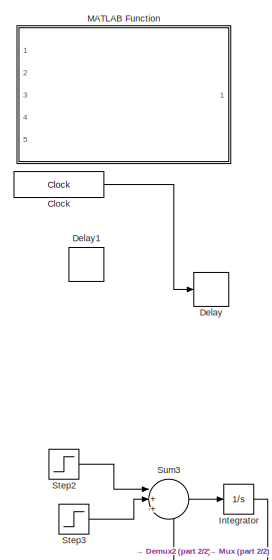
[diagram: root canvas - part 1/2, middle left region]
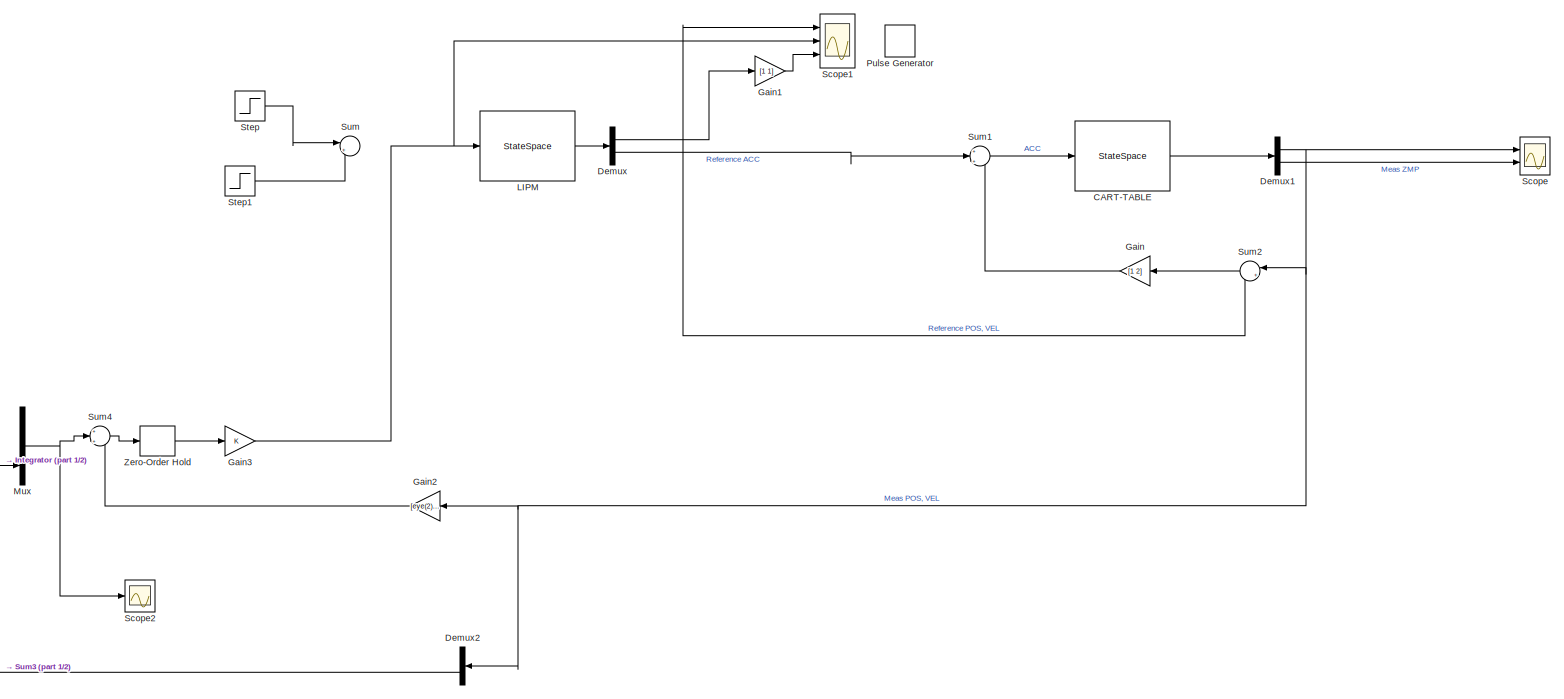
[diagram: root canvas - part 2/2, most of the canvas]
MODEL slx_6d837550c798
KIND model
CONFIG AbsTol = auto
CONFIG EnableMultiTasking = off
CONFIG FixedStep = 1e-4
CONFIG MaxStep = 1e-3
CONFIG MinStep = auto
CONFIG RelTol = 1e-6
CONFIG SampleTimeConstraint = Unconstrained
CONFIG Solver = VariableStepAuto
CONFIG SolverName = VariableStepAuto
CONFIG StartTime = 0.0
CONFIG StopTime = 30
BLOCK [StateSpace] CART-TABLE
  A = [0 1; 0 0]
  B = [0; 1]
  C = [eye(2); [1 0]]
  D = [0; 0; -1]
  Ports = [1, 1]
  X0 = [0 0]
BLOCK [Clock] Clock
  Commented = on
  DisplayTime = on
BLOCK [Delay] Delay
  Commented = on
  DelayLength = 1
  InitialCondition = 0
  InputPortMap = u0
  Ports = [1, 1]
BLOCK [Delay] Delay1
  Commented = on
  DelayLength = 1
  InitialCondition = 0
  InputPortMap = u0
  Ports = [1, 1]
BLOCK [Demux] Demux
  DisplayOption = bar
  Outputs = [2 1]
  Ports = [1, 2]
BLOCK [Demux] Demux1
  DisplayOption = bar
  Outputs = [2 1]
  Ports = [1, 2]
BLOCK [Demux] Demux2
  DisplayOption = bar
  Outputs = [1 1]
  Ports = [1, 2]
BLOCK [Gain] Gain
  Gain = [1 2]
  Multiplication = Matrix(K*u)
  OutDataTypeStr = Inherit: Inherit via internal rule
  ParamDataTypeStr = Inherit: Inherit via internal rule
  SaturateOnIntegerOverflow = off
BLOCK [Gain] Gain1
  Gain = [1 1]
  Multiplication = Matrix(K*u)
  OutDataTypeStr = Inherit: Inherit via internal rule
  ParamDataTypeStr = Inherit: Inherit via internal rule
  SaturateOnIntegerOverflow = off
BLOCK [Gain] Gain2
  Gain = [eye(2); [0 0]]
  Multiplication = Matrix(K*u)
  OutDataTypeStr = Inherit: Inherit via internal rule
  ParamDataTypeStr = Inherit: Inherit via internal rule
  SaturateOnIntegerOverflow = off
BLOCK [Gain] Gain3
  Gain = K
  Multiplication = Matrix(K*u)
  OutDataTypeStr = Inherit: Inherit via internal rule
  ParamDataTypeStr = Inherit: Inherit via internal rule
  SaturateOnIntegerOverflow = off
BLOCK [Integrator] Integrator
  Ports = [1, 1]
BLOCK [StateSpace] LIPM
  A = [0 1; 1 0]
  B = [0; -1]
  C = [eye(2); [1 0]]
  D = [0; 0; -1]
  Ports = [1, 1]
  X0 = [0 0]
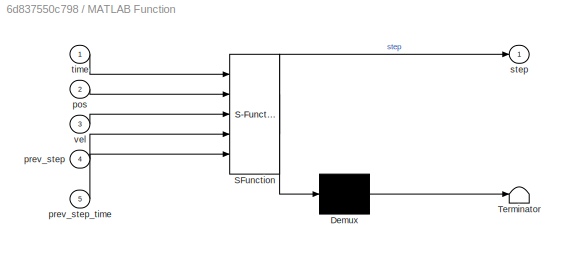
BLOCK [SubSystem] MATLAB Function
  Commented = on
  ErrorFcn = Stateflow.Translate.translate
  PermitHierarchicalResolution = ExplicitOnly
  Ports = [5, 1]
  RequestExecContextInheritance = off
  SFBlockType = MATLAB Function
  TreatAsAtomicUnit = on
  Variant = off
BLOCK [Demux] MATLAB Function/ Demux 
  Outputs = 1
  Ports = [1, 1]
BLOCK [S-Function] MATLAB Function/ SFunction 
  EnableBusSupport = on
  FunctionName = sf_sfun
  PortCounts = [5 2]
  Ports = [5, 2]
  SFcnIsStateOwnerBlock = off
  SFunctionDeploymentMode = off
  Tag = Stateflow S-Function test_1 2
BLOCK [Terminator] MATLAB Function/ Terminator 
BLOCK [Inport] MATLAB Function/pos
  IconDisplay = Port number
  Port = 2
BLOCK [Inport] MATLAB Function/prev_step
  IconDisplay = Port number
  Port = 4
BLOCK [Inport] MATLAB Function/prev_step_time
  IconDisplay = Port number
  Port = 5
BLOCK [Outport] MATLAB Function/step
  IconDisplay = Port number
BLOCK [Inport] MATLAB Function/time
  IconDisplay = Port number
BLOCK [Inport] MATLAB Function/vel
  IconDisplay = Port number
  Port = 3
BLOCK [Mux] Mux
  DisplayOption = bar
  Inputs = 3
  Ports = [3, 1]
BLOCK [DiscretePulseGenerator] Pulse Generator
  Ports = [0, 1]
  PulseType = Time based
  PulseWidth = 5
BLOCK [Scope] Scope
  NumInputPorts = 2
  Ports = [2]
  ScopeSpecificationString = Simulink.scopes.TimeScopeBlockCfg('CurrentConfiguration', extmgr.ConfigurationSet(extmgr.Configuration('Core','General UI',true),extmgr.Configuration('Core','Source UI',true),extmgr.Configuration('Sources','WiredSimulink',true),extmgr.Configuration('Visuals','Time Domain',true,'SerializedDisplays',{struct('MinYLimReal','-1.28114','MaxYLimReal','11.31645','YLabelReal','','MinYLimMag','0.00000','Max...<+1977ch>
BLOCK [Scope] Scope1
  NumInputPorts = 3
  Ports = [3]
  ScopeSpecificationString = Simulink.scopes.TimeScopeBlockCfg('CurrentConfiguration', extmgr.ConfigurationSet(extmgr.Configuration('Core','General UI',true),extmgr.Configuration('Core','Source UI',true),extmgr.Configuration('Sources','WiredSimulink',true,'DataLoggingVariableName','ScopeData1'),extmgr.Configuration('Visuals','Time Domain',true,'SerializedDisplays',{struct('MinYLimReal','-1.90447','MaxYLimReal','11.32161','YLa...<+1471ch>
BLOCK [Scope] Scope2
  NumInputPorts = 1
  Ports = [1]
  ScopeSpecificationString = Simulink.scopes.TimeScopeBlockCfg('CurrentConfiguration', extmgr.ConfigurationSet(extmgr.Configuration('Core','General UI',true),extmgr.Configuration('Core','Source UI',true),extmgr.Configuration('Sources','WiredSimulink',true,'DataLoggingVariableName','ScopeData1'),extmgr.Configuration('Visuals','Time Domain',true,'SerializedDisplays',{struct('MinYLimReal','-0.26131','MaxYLimReal','2.35181','YLab...<+1422ch>
BLOCK [Step] Step
  After = -exp(-1)
  Commented = on
  SampleTime = 0
BLOCK [Step] Step1
  Commented = on
  SampleTime = 0
  Time = 2
BLOCK [Step] Step2
  SampleTime = 0
  Time = 10
BLOCK [Step] Step3
  After = -1
  SampleTime = 0
  Time = 20
BLOCK [Sum] Sum
  Commented = on
  IconShape = round
  InputSameDT = off
  Inputs = |++
  OutDataTypeStr = Inherit: Inherit via internal rule
  Ports = [2, 1]
  SaturateOnIntegerOverflow = off
BLOCK [Sum] Sum1
  IconShape = round
  InputSameDT = off
  Inputs = +|+-
  OutDataTypeStr = Inherit: Inherit via internal rule
  Ports = [3, 1]
  SaturateOnIntegerOverflow = off
BLOCK [Sum] Sum2
  IconShape = round
  InputSameDT = off
  Inputs = |+-
  OutDataTypeStr = Inherit: Inherit via internal rule
  Ports = [2, 1]
  SaturateOnIntegerOverflow = off
BLOCK [Sum] Sum3
  IconShape = round
  InputSameDT = off
  Inputs = |++-
  OutDataTypeStr = Inherit: Inherit via internal rule
  Ports = [3, 1]
  SaturateOnIntegerOverflow = off
BLOCK [Sum] Sum4
  IconShape = round
  InputSameDT = off
  Inputs = +|+-
  OutDataTypeStr = Inherit: Inherit via internal rule
  Ports = [3, 1]
  SaturateOnIntegerOverflow = off
BLOCK [ZeroOrderHold] Zero-Order Hold
LINE CART-TABLE:1 -> Demux1:1
LINE Clock:1 -> Delay:1
NET Demux1:1 -> Demux2:1, Gain2:1, Scope:1, Sum2:1
LINE Demux1:2 -> Scope:2
LINE Demux2:2 -> Sum3:3
NET Demux:1 -> Gain1:1, Scope1:1, Sum2:2
LINE Demux:2 -> Sum1:2
LINE Gain1:1 -> Scope1:3
LINE Gain2:1 -> Sum4:3
NET Gain3:1 -> LIPM:1, Scope1:2
LINE Gain:1 -> Sum1:3
LINE Integrator:1 -> Mux:3
LINE LIPM:1 -> Demux:1
NET Mux:1 -> Scope2:1, Sum4:2
LINE Step1:1 -> Sum:2
LINE Step2:1 -> Sum3:1
LINE Step3:1 -> Sum3:2
LINE Step:1 -> Sum:1
LINE Sum1:1 -> CART-TABLE:1
LINE Sum2:1 -> Gain:1
LINE Sum3:1 -> Integrator:1
LINE Sum4:1 -> Zero-Order Hold:1
LINE Zero-Order Hold:1 -> Gain3:1
note: NET lines group one-source signal fan-out (src -> all destinations, sorted); 1:1 wires keep LINE
CHART MATLAB Function states=1 transitions=1
  STATE_LABEL 'eML_blk_kernel()'
  STATE_LABEL 'SCRIPT:\nfunction step = footstep_planning(time, pos, vel, prev_step, prev_step_time)\n\n% pos + vel =  p_0 + s_1*e^(t1) + s_2*e^(t2) + ...\n\nn_steps = 5;\nfuture_ts = 0:(n_steps-1); %ceil(time):(floor(time)+5);\nexp_ts = exp(-future_ts);\n\nA = [exp_ts; ones(1, n_steps)];\nb = [0 + 0.4; 1];\n\ns = pinv(A)*b;\n\nsteps = cumsum(s);\n\n\nif time == floor(time) && time < 5\n    \n    step = steps(floor(time)+1);\n    \n...<+284ch>'
